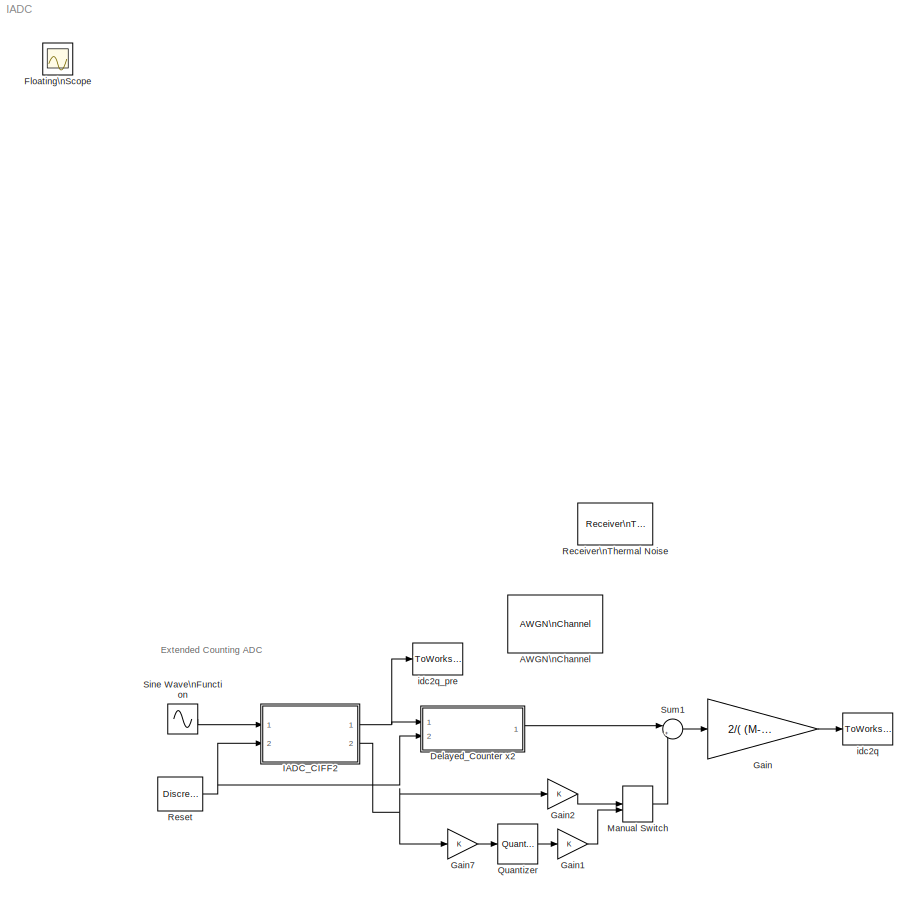
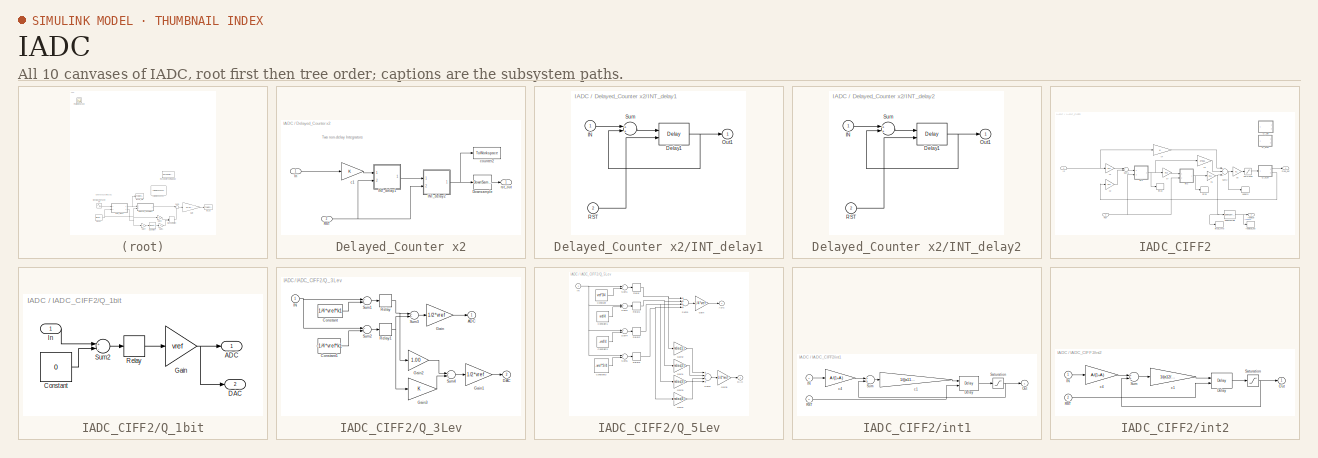
[diagram: thumbnail index - all 10 canvases of the model, root first then tree order]
MODEL IADC
KIND model
BLOCK [Reference] AWGN\nChannel  REF=commchan3/AWGN\nChannel
  Commented = on
  EbNodB = 10
  EsNodB = 10
  InputProcessing = Columns as channels (frame based)
  Ports = [1, 1]
  Ps = 1
  RTWMemSecDataConstants = Inherit from model
  RTWMemSecDataInternal = Inherit from model
  RTWMemSecDataParameters = Inherit from model
  RTWMemSecFuncExecute = Inherit from model
  RTWMemSecFuncInitTerm = Inherit from model
  SID = 13169
  SNRdB = 10
  SourceBlock = commchan3/AWGN\nChannel
  SourceProductBaseCode = CM
  SourceProductName = Communications Toolbox
  SourceType = AWGN Channel
  Tsym = 1
  UserData = DataTag0
  UserDataPersistent = on
  bitsPerSym = 1
  noiseMode = Signal to noise ratio  (Eb/No)
  seed = 67
  variance = 1
BLOCK [SubSystem] Delayed_Counter x2
  Ports = [2, 1]
  RequestExecContextInheritance = off
  SID = 13048
BLOCK [DownSample] Delayed_Counter x2/Downsample
  InputProcessing = Elements as channels (sample based)
  N = OSR
  RateOptions = Allow multirate processing
  SID = 13051
  phase = OSR-1
BLOCK [SubSystem] Delayed_Counter x2/INT_delay1
  Ports = [2, 1]
  RequestExecContextInheritance = off
  SID = 13052
BLOCK [Delay] Delayed_Counter x2/INT_delay1/Delay1
  DelayLength = 1
  ExternalReset = Rising
  InitialCondition = 0
  InputPortMap = u0,r5
  Ports = [2, 1]
  SID = 13055
  UserData = DataTag1
  UserDataPersistent = on
BLOCK [Inport] Delayed_Counter x2/INT_delay1/IN
  IconDisplay = Port number
  SID = 13053
BLOCK [Outport] Delayed_Counter x2/INT_delay1/Out1
  IconDisplay = Port number
  SID = 13057
  VectorParamsAs1DForOutWhenUnconnected = off
BLOCK [Inport] Delayed_Counter x2/INT_delay1/RST
  IconDisplay = Port number
  Port = 2
  SID = 13054
BLOCK [Sum] Delayed_Counter x2/INT_delay1/Sum
  Ports = [2, 1]
  SID = 13056
BLOCK [SubSystem] Delayed_Counter x2/INT_delay2
  Ports = [2, 1]
  RequestExecContextInheritance = off
  SID = 13058
BLOCK [Delay] Delayed_Counter x2/INT_delay2/Delay1
  DelayLength = 1
  ExternalReset = Rising
  InitialCondition = 0
  InputPortMap = u0,r5
  Ports = [2, 1]
  SID = 13061
  UserData = DataTag2
  UserDataPersistent = on
BLOCK [Inport] Delayed_Counter x2/INT_delay2/IN
  IconDisplay = Port number
  SID = 13059
BLOCK [Outport] Delayed_Counter x2/INT_delay2/Out1
  IconDisplay = Port number
  SID = 13063
  VectorParamsAs1DForOutWhenUnconnected = off
BLOCK [Inport] Delayed_Counter x2/INT_delay2/RST
  IconDisplay = Port number
  Port = 2
  SID = 13060
BLOCK [Sum] Delayed_Counter x2/INT_delay2/Sum
  Ports = [2, 1]
  SID = 13062
BLOCK [Inport] Delayed_Counter x2/In
  IconDisplay = Port number
  SID = 13049
BLOCK [Inport] Delayed_Counter x2/RST
  IconDisplay = Port number
  Port = 2
  SID = 13050
BLOCK [Gain] Delayed_Counter x2/c1
  SID = 13064
BLOCK [ToWorkspace] Delayed_Counter x2/counter2
  MaxDataPoints = inf
  Ports = [1]
  SID = 13065
  SampleTime = -1
  VariableName = counter2
BLOCK [Outport] Delayed_Counter x2/rst_out
  IconDisplay = Port number
  SID = 13066
  VectorParamsAs1DForOutWhenUnconnected = off
BLOCK [Scope] Floating\nScope
  Floating = off
  IOType = viewer
  NumInputPorts = 1
  Ports = []
  SID = 82
  ScopeSpecificationString = C++SS(StrPVP('Location','[376, 294, 963, 755]'),StrPVP('Open','off'),MxPVP('AxesTitles',54,'struct(''axes1'',''%<SignalLabel>'')'),StrPVP('DataFormat','StructureWithTime'),StrPVP('BlockParamSampleTime','0'),StrPVP('LimitDataPoints','on'),StrPVP('Decimation','1'),StrPVP('BlockParamSampleInput','off'))
BLOCK [Gain] Gain
  Gain = 2/( (M-1)*(M) )
  OutDataTypeStr = Inherit: Inherit via internal rule
  ParamDataTypeStr = Inherit: Inherit via internal rule
  SID = 13070
  SaturateOnIntegerOverflow = off
BLOCK [Gain] Gain1
  OutDataTypeStr = Inherit: Inherit via internal rule
  ParamDataTypeStr = Inherit: Inherit via internal rule
  SID = 13069
  SaturateOnIntegerOverflow = off
BLOCK [Gain] Gain2
  OutDataTypeStr = Inherit: Inherit via internal rule
  ParamDataTypeStr = Inherit: Inherit via internal rule
  SID = 13068
  SaturateOnIntegerOverflow = off
BLOCK [Gain] Gain7
  OutDataTypeStr = Inherit: Inherit via internal rule
  ParamDataTypeStr = Inherit: Inherit via internal rule
  SID = 13071
  SaturateOnIntegerOverflow = off
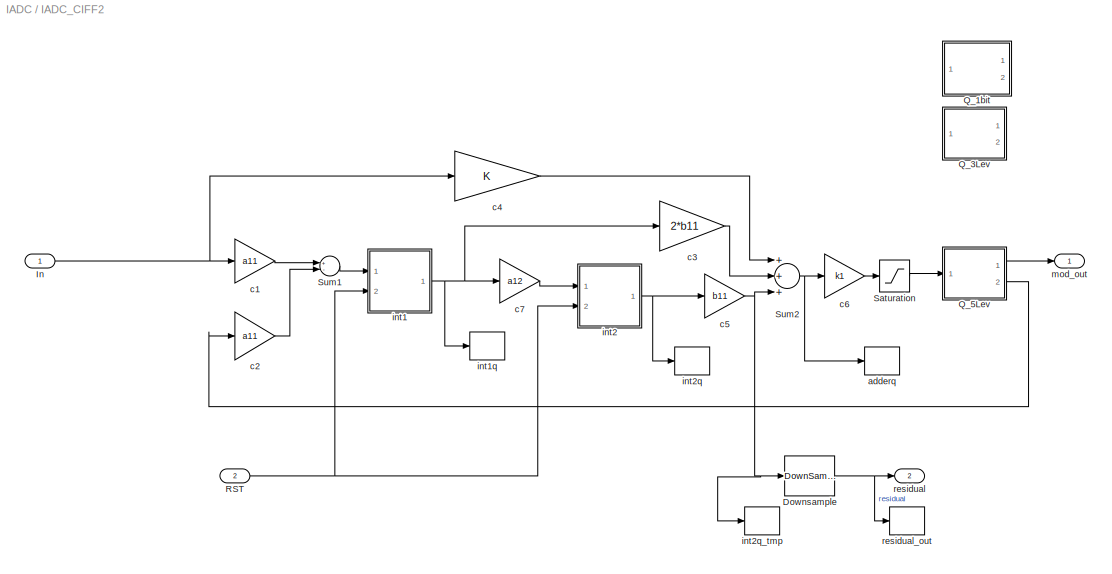
BLOCK [SubSystem] IADC_CIFF2
  Ports = [2, 2]
  RequestExecContextInheritance = off
  SID = 13072
BLOCK [DownSample] IADC_CIFF2/Downsample
  InputProcessing = Elements as channels (sample based)
  N = OSR
  RateOptions = Allow multirate processing
  SID = 13075
  phase = OSR-1
BLOCK [Inport] IADC_CIFF2/In
  IconDisplay = Port number
  SID = 13073
BLOCK [SubSystem] IADC_CIFF2/Q_1bit
  Commented = on
  Ports = [1, 2]
  RequestExecContextInheritance = off
  SID = 13076
BLOCK [Outport] IADC_CIFF2/Q_1bit/ADC
  IconDisplay = Port number
  SID = 13082
  VectorParamsAs1DForOutWhenUnconnected = off
BLOCK [Constant] IADC_CIFF2/Q_1bit/Constant
  SID = 13078
  Value = 0
BLOCK [Outport] IADC_CIFF2/Q_1bit/DAC
  IconDisplay = Port number
  Port = 2
  SID = 13083
  VectorParamsAs1DForOutWhenUnconnected = off
BLOCK [Gain] IADC_CIFF2/Q_1bit/Gain
  Gain = vref
  OutDataTypeStr = Inherit: Inherit via internal rule
  ParamDataTypeStr = Inherit: Inherit via internal rule
  SID = 13079
  SaturateOnIntegerOverflow = off
BLOCK [Inport] IADC_CIFF2/Q_1bit/In
  IconDisplay = Port number
  SID = 13077
BLOCK [Relay] IADC_CIFF2/Q_1bit/Relay
  OffOutputValue = -1
  SID = 13080
  SampleTime = tclk
BLOCK [Sum] IADC_CIFF2/Q_1bit/Sum2
  Inputs = +-
  Ports = [2, 1]
  SID = 13081
BLOCK [SubSystem] IADC_CIFF2/Q_3Lev
  Commented = on
  Ports = [1, 2]
  RequestExecContextInheritance = off
  SID = 13084
BLOCK [Outport] IADC_CIFF2/Q_3Lev/ADC
  IconDisplay = Port number
  SID = 13098
  VectorParamsAs1DForOutWhenUnconnected = off
BLOCK [Constant] IADC_CIFF2/Q_3Lev/Constant
  SID = 13086
  Value = 1/4*vref*k1
BLOCK [Constant] IADC_CIFF2/Q_3Lev/Constant1
  SID = 13087
  Value = -1/4*vref*k1
BLOCK [Outport] IADC_CIFF2/Q_3Lev/DAC
  IconDisplay = Port number
  Port = 2
  SID = 13099
  VectorParamsAs1DForOutWhenUnconnected = off
BLOCK [Gain] IADC_CIFF2/Q_3Lev/Gain
  Gain = 1/2*vref
  OutDataTypeStr = Inherit: Inherit via internal rule
  ParamDataTypeStr = Inherit: Inherit via internal rule
  SID = 13088
  SaturateOnIntegerOverflow = off
BLOCK [Gain] IADC_CIFF2/Q_3Lev/Gain1
  Gain = 1/2*vref
  OutDataTypeStr = Inherit: Inherit via internal rule
  ParamDataTypeStr = Inherit: Inherit via internal rule
  SID = 13089
  SaturateOnIntegerOverflow = off
BLOCK [Gain] IADC_CIFF2/Q_3Lev/Gain2
  Gain = 1.00
  OutDataTypeStr = Inherit: Inherit via internal rule
  ParamDataTypeStr = Inherit: Inherit via internal rule
  SID = 13090
  SaturateOnIntegerOverflow = off
BLOCK [Gain] IADC_CIFF2/Q_3Lev/Gain3
  OutDataTypeStr = Inherit: Inherit via internal rule
  ParamDataTypeStr = Inherit: Inherit via internal rule
  SID = 13091
  SaturateOnIntegerOverflow = off
BLOCK [Inport] IADC_CIFF2/Q_3Lev/IN
  IconDisplay = Port number
  SID = 13085
BLOCK [Relay] IADC_CIFF2/Q_3Lev/Relay
  OffOutputValue = -1
  SID = 13092
  SampleTime = tclk
BLOCK [Relay] IADC_CIFF2/Q_3Lev/Relay1
  OffOutputValue = -1
  SID = 13093
  SampleTime = tclk
BLOCK [Sum] IADC_CIFF2/Q_3Lev/Sum1
  Inputs = +-
  Ports = [2, 1]
  SID = 13094
BLOCK [Sum] IADC_CIFF2/Q_3Lev/Sum2
  Inputs = +-
  Ports = [2, 1]
  SID = 13095
BLOCK [Sum] IADC_CIFF2/Q_3Lev/Sum3
  Ports = [2, 1]
  SID = 13096
BLOCK [Sum] IADC_CIFF2/Q_3Lev/Sum4
  Ports = [2, 1]
  SID = 13097
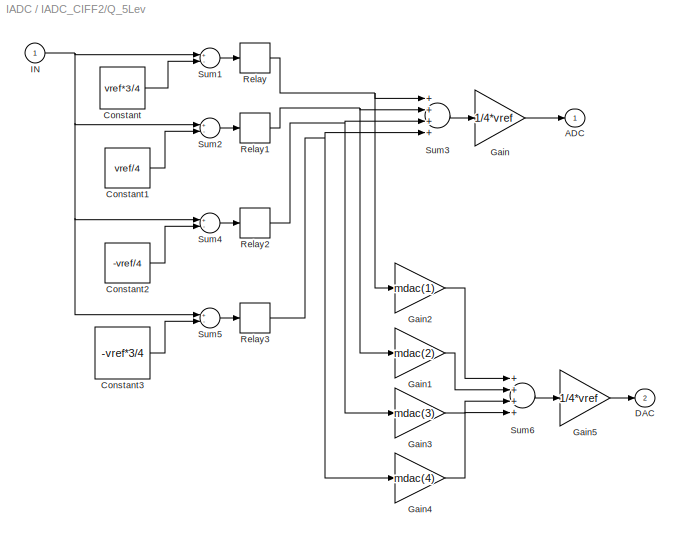
BLOCK [SubSystem] IADC_CIFF2/Q_5Lev
  Ports = [1, 2]
  RequestExecContextInheritance = off
  SID = 13100
BLOCK [Outport] IADC_CIFF2/Q_5Lev/ADC
  IconDisplay = Port number
  SID = 13122
  VectorParamsAs1DForOutWhenUnconnected = off
BLOCK [Constant] IADC_CIFF2/Q_5Lev/Constant
  SID = 13102
  Value = vref*3/4
BLOCK [Constant] IADC_CIFF2/Q_5Lev/Constant1
  SID = 13103
  Value = vref/4
BLOCK [Constant] IADC_CIFF2/Q_5Lev/Constant2
  SID = 13104
  Value = -vref/4
BLOCK [Constant] IADC_CIFF2/Q_5Lev/Constant3
  SID = 13105
  Value = -vref*3/4
BLOCK [Outport] IADC_CIFF2/Q_5Lev/DAC
  IconDisplay = Port number
  Port = 2
  SID = 13123
  VectorParamsAs1DForOutWhenUnconnected = off
BLOCK [Gain] IADC_CIFF2/Q_5Lev/Gain
  Gain = 1/4*vref
  OutDataTypeStr = Inherit: Inherit via internal rule
  ParamDataTypeStr = Inherit: Inherit via internal rule
  SID = 13106
  SaturateOnIntegerOverflow = off
BLOCK [Gain] IADC_CIFF2/Q_5Lev/Gain1
  Gain = mdac(2)
  OutDataTypeStr = Inherit: Inherit via internal rule
  ParamDataTypeStr = Inherit: Inherit via internal rule
  SID = 13107
  SaturateOnIntegerOverflow = off
BLOCK [Gain] IADC_CIFF2/Q_5Lev/Gain2
  Gain = mdac(1)
  OutDataTypeStr = Inherit: Inherit via internal rule
  ParamDataTypeStr = Inherit: Inherit via internal rule
  SID = 13108
  SaturateOnIntegerOverflow = off
BLOCK [Gain] IADC_CIFF2/Q_5Lev/Gain3
  Gain = mdac(3)
  OutDataTypeStr = Inherit: Inherit via internal rule
  ParamDataTypeStr = Inherit: Inherit via internal rule
  SID = 13109
  SaturateOnIntegerOverflow = off
BLOCK [Gain] IADC_CIFF2/Q_5Lev/Gain4
  Gain = mdac(4)
  OutDataTypeStr = Inherit: Inherit via internal rule
  ParamDataTypeStr = Inherit: Inherit via internal rule
  SID = 13110
  SaturateOnIntegerOverflow = off
BLOCK [Gain] IADC_CIFF2/Q_5Lev/Gain5
  Gain = 1/4*vref
  OutDataTypeStr = Inherit: Inherit via internal rule
  ParamDataTypeStr = Inherit: Inherit via internal rule
  SID = 13111
  SaturateOnIntegerOverflow = off
BLOCK [Inport] IADC_CIFF2/Q_5Lev/IN
  IconDisplay = Port number
  SID = 13101
BLOCK [Relay] IADC_CIFF2/Q_5Lev/Relay
  OffOutputValue = -1
  SID = 13112
  SampleTime = tclk
BLOCK [Relay] IADC_CIFF2/Q_5Lev/Relay1
  OffOutputValue = -1
  SID = 13113
  SampleTime = tclk
BLOCK [Relay] IADC_CIFF2/Q_5Lev/Relay2
  OffOutputValue = -1
  SID = 13114
  SampleTime = tclk
BLOCK [Relay] IADC_CIFF2/Q_5Lev/Relay3
  OffOutputValue = -1
  SID = 13115
  SampleTime = tclk
BLOCK [Sum] IADC_CIFF2/Q_5Lev/Sum1
  Inputs = +-
  Ports = [2, 1]
  SID = 13116
BLOCK [Sum] IADC_CIFF2/Q_5Lev/Sum2
  Inputs = +-
  Ports = [2, 1]
  SID = 13117
BLOCK [Sum] IADC_CIFF2/Q_5Lev/Sum3
  Inputs = ++++
  Ports = [4, 1]
  SID = 13118
BLOCK [Sum] IADC_CIFF2/Q_5Lev/Sum4
  Inputs = +-
  Ports = [2, 1]
  SID = 13119
BLOCK [Sum] IADC_CIFF2/Q_5Lev/Sum5
  Inputs = +-
  Ports = [2, 1]
  SID = 13120
BLOCK [Sum] IADC_CIFF2/Q_5Lev/Sum6
  Inputs = ++++
  Ports = [4, 1]
  SID = 13121
BLOCK [Inport] IADC_CIFF2/RST
  IconDisplay = Port number
  Port = 2
  SID = 13074
BLOCK [Saturate] IADC_CIFF2/Saturation
  InputPortMap = u0
  LowerLimit = -1*adder_max
  Ports = [1, 1]
  SID = 13124
  UpperLimit = adder_max*1
BLOCK [Sum] IADC_CIFF2/Sum1
  Inputs = +-
  Ports = [2, 1]
  SID = 13125
BLOCK [Sum] IADC_CIFF2/Sum2
  Inputs = +++
  Ports = [3, 1]
  SID = 13126
BLOCK [ToWorkspace] IADC_CIFF2/adderq
  MaxDataPoints = inf
  Ports = [1]
  SID = 13127
  SampleTime = -1
  VariableName = adderq
BLOCK [Gain] IADC_CIFF2/c1
  Gain = a11
  SID = 13128
BLOCK [Gain] IADC_CIFF2/c2
  Gain = a11
  SID = 13129
BLOCK [Gain] IADC_CIFF2/c3
  Gain = 2*b11
  SID = 13130
BLOCK [Gain] IADC_CIFF2/c4
  SID = 13131
BLOCK [Gain] IADC_CIFF2/c5
  Gain = b11
  SID = 13132
BLOCK [Gain] IADC_CIFF2/c6
  Gain = k1
  SID = 13133
BLOCK [Gain] IADC_CIFF2/c7
  Gain = a12
  SID = 13134
BLOCK [SubSystem] IADC_CIFF2/int1
  Ports = [2, 1]
  RequestExecContextInheritance = off
  SID = 13135
BLOCK [Delay] IADC_CIFF2/int1/Delay
  DelayLength = 1
  ExternalReset = Rising
  InitialCondition = 0
  InputPortMap = u0,r5
  Ports = [2, 1]
  SID = 13138
  UserData = DataTag3
  UserDataPersistent = on
BLOCK [Inport] IADC_CIFF2/int1/IN
  IconDisplay = Port number
  SID = 13136
BLOCK [Outport] IADC_CIFF2/int1/Out
  IconDisplay = Port number
  SID = 13143
  VectorParamsAs1DForOutWhenUnconnected = off
BLOCK [Inport] IADC_CIFF2/int1/RST
  IconDisplay = Port number
  Port = 2
  SID = 13137
BLOCK [Saturate] IADC_CIFF2/int1/Saturation
  InputPortMap = u0
  LowerLimit = -1*Amax
  Ports = [1, 1]
  SID = 13139
  UpperLimit = Amax
BLOCK [Sum] IADC_CIFF2/int1/Sum
  Ports = [2, 1]
  SID = 13140
BLOCK [Gain] IADC_CIFF2/int1/c1
  Gain = 1/((a11+a11)/(1+A) +1)
  SID = 13141
BLOCK [Gain] IADC_CIFF2/int1/c4
  Gain = A/(1+A)
  SID = 13142
BLOCK [ToWorkspace] IADC_CIFF2/int1q
  MaxDataPoints = inf
  Ports = [1]
  SID = 13144
  SampleTime = -1
  VariableName = int1q
BLOCK [SubSystem] IADC_CIFF2/int2
  Ports = [2, 1]
  RequestExecContextInheritance = off
  SID = 13145
BLOCK [Delay] IADC_CIFF2/int2/Delay
  DelayLength = 1
  ExternalReset = Rising
  InitialCondition = 0
  InputPortMap = u0,r5
  Ports = [2, 1]
  SID = 13148
  UserData = DataTag4
  UserDataPersistent = on
BLOCK [Inport] IADC_CIFF2/int2/IN
  IconDisplay = Port number
  SID = 13146
BLOCK [Outport] IADC_CIFF2/int2/Out
  IconDisplay = Port number
  SID = 13153
  VectorParamsAs1DForOutWhenUnconnected = off
BLOCK [Inport] IADC_CIFF2/int2/RST
  IconDisplay = Port number
  Port = 2
  SID = 13147
BLOCK [Saturate] IADC_CIFF2/int2/Saturation
  InputPortMap = u0
  LowerLimit = -1*Amax
  Ports = [1, 1]
  SID = 13149
  UpperLimit = Amax
BLOCK [Sum] IADC_CIFF2/int2/Sum
  Ports = [2, 1]
  SID = 13150
BLOCK [Gain] IADC_CIFF2/int2/c1
  Gain = 1/(a12/(1+A) +1)
  SID = 13151
BLOCK [Gain] IADC_CIFF2/int2/c4
  Gain = A/(1+A)
  SID = 13152
BLOCK [ToWorkspace] IADC_CIFF2/int2q
  MaxDataPoints = inf
  Ports = [1]
  SID = 13154
  SampleTime = -1
  VariableName = int2q
BLOCK [ToWorkspace] IADC_CIFF2/int2q_tmp
  MaxDataPoints = inf
  Ports = [1]
  SID = 13155
  SampleTime = -1
  VariableName = int2q_tmp
BLOCK [Outport] IADC_CIFF2/mod_out
  IconDisplay = Port number
  SID = 13157
  VectorParamsAs1DForOutWhenUnconnected = off
BLOCK [Outport] IADC_CIFF2/residual
  IconDisplay = Port number
  Port = 2
  SID = 13158
  VectorParamsAs1DForOutWhenUnconnected = off
BLOCK [ToWorkspace] IADC_CIFF2/residual_out
  MaxDataPoints = inf
  Ports = [1]
  SID = 13156
  SampleTime = -1
  VariableName = residual
BLOCK [ManualSwitch] Manual Switch
  CurrentSetting = 0
  SID = 13159
BLOCK [Quantizer] Quantizer
  LinearizeAsGain = off
  QuantizationInterval = vfs/1024
  SID = 13160
BLOCK [Reference] Receiver\nThermal Noise  REF=commrflib2/Receiver\nThermal Noise
  Commented = on
  Ports = [1, 1]
  RTWMemSecDataConstants = Inherit from model
  RTWMemSecDataInternal = Inherit from model
  RTWMemSecDataParameters = Inherit from model
  RTWMemSecFuncExecute = Inherit from model
  RTWMemSecFuncInitTerm = Inherit from model
  SID = 13168
  SourceBlock = commrflib2/Receiver\nThermal Noise
  SourceProductBaseCode = CM
  SourceProductName = Communications Toolbox
  SourceType = Receiver Thermal Noise
  add290KAntennaNoise = off
  method = Noise temperature
  nfactor = 2
  nfigure = 3.0103
  ntemp = 290
  seed = 67987
BLOCK [DiscretePulseGenerator] Reset
  Period = OSR
  Ports = [0, 1]
  SID = 13161
  SampleTime = tclk
BLOCK [Sin] Sine Wave\nFunction
  Amplitude = vin_amp
  Frequency = fsig*2*pi
  Ports = [0, 1]
  SID = 13162
  SampleTime = tclk
BLOCK [Sum] Sum1
  IconShape = round
  InputSameDT = off
  Inputs = |++
  OutDataTypeStr = Inherit: Inherit via internal rule
  Ports = [2, 1]
  SID = 13163
  SaturateOnIntegerOverflow = off
BLOCK [ToWorkspace] idc2q
  MaxDataPoints = inf
  Ports = [1]
  SID = 13164
  SampleTime = -1
  VariableName = idc2q
BLOCK [ToWorkspace] idc2q_pre
  MaxDataPoints = inf
  Ports = [1]
  SID = 13165
  SampleTime = -1
  VariableName = idc2q_pre
ANNOTATION (root): Extended Counting ADC
ANNOTATION Delayed_Counter x2: Two non-delay Integrators
LINE Delayed_Counter x2/Downsample:1 -> Delayed_Counter x2/rst_out:1
NET Delayed_Counter x2/INT_delay1/Delay1:1 -> Delayed_Counter x2/INT_delay1/Out1:1, Delayed_Counter x2/INT_delay1/Sum:2
LINE Delayed_Counter x2/INT_delay1/IN:1 -> Delayed_Counter x2/INT_delay1/Sum:1
LINE Delayed_Counter x2/INT_delay1/RST:1 -> Delayed_Counter x2/INT_delay1/Delay1:2
LINE Delayed_Counter x2/INT_delay1/Sum:1 -> Delayed_Counter x2/INT_delay1/Delay1:1
LINE Delayed_Counter x2/INT_delay1:1 -> Delayed_Counter x2/INT_delay2:1
NET Delayed_Counter x2/INT_delay2/Delay1:1 -> Delayed_Counter x2/INT_delay2/Out1:1, Delayed_Counter x2/INT_delay2/Sum:2
LINE Delayed_Counter x2/INT_delay2/IN:1 -> Delayed_Counter x2/INT_delay2/Sum:1
LINE Delayed_Counter x2/INT_delay2/RST:1 -> Delayed_Counter x2/INT_delay2/Delay1:2
LINE Delayed_Counter x2/INT_delay2/Sum:1 -> Delayed_Counter x2/INT_delay2/Delay1:1
NET Delayed_Counter x2/INT_delay2:1 -> Delayed_Counter x2/Downsample:1, Delayed_Counter x2/counter2:1
LINE Delayed_Counter x2/In:1 -> Delayed_Counter x2/c1:1
NET Delayed_Counter x2/RST:1 -> Delayed_Counter x2/INT_delay1:2, Delayed_Counter x2/INT_delay2:2
LINE Delayed_Counter x2/c1:1 -> Delayed_Counter x2/INT_delay1:1
LINE Delayed_Counter x2:1 -> Sum1:1
LINE Gain1:1 -> Manual Switch:2
LINE Gain2:1 -> Manual Switch:1
LINE Gain7:1 -> Quantizer:1
LINE Gain:1 -> idc2q:1
NET IADC_CIFF2/Downsample:1 -> IADC_CIFF2/residual:1, IADC_CIFF2/residual_out:1
NET IADC_CIFF2/In:1 -> IADC_CIFF2/c1:1, IADC_CIFF2/c4:1
LINE IADC_CIFF2/Q_1bit/Constant:1 -> IADC_CIFF2/Q_1bit/Sum2:2
NET IADC_CIFF2/Q_1bit/Gain:1 -> IADC_CIFF2/Q_1bit/ADC:1, IADC_CIFF2/Q_1bit/DAC:1
LINE IADC_CIFF2/Q_1bit/In:1 -> IADC_CIFF2/Q_1bit/Sum2:1
LINE IADC_CIFF2/Q_1bit/Relay:1 -> IADC_CIFF2/Q_1bit/Gain:1
LINE IADC_CIFF2/Q_1bit/Sum2:1 -> IADC_CIFF2/Q_1bit/Relay:1
LINE IADC_CIFF2/Q_3Lev/Constant1:1 -> IADC_CIFF2/Q_3Lev/Sum2:2
LINE IADC_CIFF2/Q_3Lev/Constant:1 -> IADC_CIFF2/Q_3Lev/Sum1:2
LINE IADC_CIFF2/Q_3Lev/Gain1:1 -> IADC_CIFF2/Q_3Lev/DAC:1
LINE IADC_CIFF2/Q_3Lev/Gain2:1 -> IADC_CIFF2/Q_3Lev/Sum4:1
LINE IADC_CIFF2/Q_3Lev/Gain3:1 -> IADC_CIFF2/Q_3Lev/Sum4:2
LINE IADC_CIFF2/Q_3Lev/Gain:1 -> IADC_CIFF2/Q_3Lev/ADC:1
NET IADC_CIFF2/Q_3Lev/IN:1 -> IADC_CIFF2/Q_3Lev/Sum1:1, IADC_CIFF2/Q_3Lev/Sum2:1
NET IADC_CIFF2/Q_3Lev/Relay1:1 -> IADC_CIFF2/Q_3Lev/Gain3:1, IADC_CIFF2/Q_3Lev/Sum3:2
NET IADC_CIFF2/Q_3Lev/Relay:1 -> IADC_CIFF2/Q_3Lev/Gain2:1, IADC_CIFF2/Q_3Lev/Sum3:1
LINE IADC_CIFF2/Q_3Lev/Sum1:1 -> IADC_CIFF2/Q_3Lev/Relay:1
LINE IADC_CIFF2/Q_3Lev/Sum2:1 -> IADC_CIFF2/Q_3Lev/Relay1:1
LINE IADC_CIFF2/Q_3Lev/Sum3:1 -> IADC_CIFF2/Q_3Lev/Gain:1
LINE IADC_CIFF2/Q_3Lev/Sum4:1 -> IADC_CIFF2/Q_3Lev/Gain1:1
LINE IADC_CIFF2/Q_5Lev/Constant1:1 -> IADC_CIFF2/Q_5Lev/Sum2:2
LINE IADC_CIFF2/Q_5Lev/Constant2:1 -> IADC_CIFF2/Q_5Lev/Sum4:2
LINE IADC_CIFF2/Q_5Lev/Constant3:1 -> IADC_CIFF2/Q_5Lev/Sum5:2
LINE IADC_CIFF2/Q_5Lev/Constant:1 -> IADC_CIFF2/Q_5Lev/Sum1:2
LINE IADC_CIFF2/Q_5Lev/Gain1:1 -> IADC_CIFF2/Q_5Lev/Sum6:2
LINE IADC_CIFF2/Q_5Lev/Gain2:1 -> IADC_CIFF2/Q_5Lev/Sum6:1
LINE IADC_CIFF2/Q_5Lev/Gain3:1 -> IADC_CIFF2/Q_5Lev/Sum6:3
LINE IADC_CIFF2/Q_5Lev/Gain4:1 -> IADC_CIFF2/Q_5Lev/Sum6:4
LINE IADC_CIFF2/Q_5Lev/Gain5:1 -> IADC_CIFF2/Q_5Lev/DAC:1
LINE IADC_CIFF2/Q_5Lev/Gain:1 -> IADC_CIFF2/Q_5Lev/ADC:1
NET IADC_CIFF2/Q_5Lev/IN:1 -> IADC_CIFF2/Q_5Lev/Sum1:1, IADC_CIFF2/Q_5Lev/Sum2:1, IADC_CIFF2/Q_5Lev/Sum4:1, IADC_CIFF2/Q_5Lev/Sum5:1
NET IADC_CIFF2/Q_5Lev/Relay1:1 -> IADC_CIFF2/Q_5Lev/Gain1:1, IADC_CIFF2/Q_5Lev/Sum3:2
NET IADC_CIFF2/Q_5Lev/Relay2:1 -> IADC_CIFF2/Q_5Lev/Gain3:1, IADC_CIFF2/Q_5Lev/Sum3:3
NET IADC_CIFF2/Q_5Lev/Relay3:1 -> IADC_CIFF2/Q_5Lev/Gain4:1, IADC_CIFF2/Q_5Lev/Sum3:4
NET IADC_CIFF2/Q_5Lev/Relay:1 -> IADC_CIFF2/Q_5Lev/Gain2:1, IADC_CIFF2/Q_5Lev/Sum3:1
LINE IADC_CIFF2/Q_5Lev/Sum1:1 -> IADC_CIFF2/Q_5Lev/Relay:1
LINE IADC_CIFF2/Q_5Lev/Sum2:1 -> IADC_CIFF2/Q_5Lev/Relay1:1
LINE IADC_CIFF2/Q_5Lev/Sum3:1 -> IADC_CIFF2/Q_5Lev/Gain:1
LINE IADC_CIFF2/Q_5Lev/Sum4:1 -> IADC_CIFF2/Q_5Lev/Relay2:1
LINE IADC_CIFF2/Q_5Lev/Sum5:1 -> IADC_CIFF2/Q_5Lev/Relay3:1
LINE IADC_CIFF2/Q_5Lev/Sum6:1 -> IADC_CIFF2/Q_5Lev/Gain5:1
LINE IADC_CIFF2/Q_5Lev:1 -> IADC_CIFF2/mod_out:1
LINE IADC_CIFF2/Q_5Lev:2 -> IADC_CIFF2/c2:1
NET IADC_CIFF2/RST:1 -> IADC_CIFF2/int1:2, IADC_CIFF2/int2:2
LINE IADC_CIFF2/Saturation:1 -> IADC_CIFF2/Q_5Lev:1
LINE IADC_CIFF2/Sum1:1 -> IADC_CIFF2/int1:1
NET IADC_CIFF2/Sum2:1 -> IADC_CIFF2/adderq:1, IADC_CIFF2/c6:1
LINE IADC_CIFF2/c1:1 -> IADC_CIFF2/Sum1:1
LINE IADC_CIFF2/c2:1 -> IADC_CIFF2/Sum1:2
LINE IADC_CIFF2/c3:1 -> IADC_CIFF2/Sum2:2
LINE IADC_CIFF2/c4:1 -> IADC_CIFF2/Sum2:1
NET IADC_CIFF2/c5:1 -> IADC_CIFF2/Downsample:1, IADC_CIFF2/Sum2:3, IADC_CIFF2/int2q_tmp:1
LINE IADC_CIFF2/c6:1 -> IADC_CIFF2/Saturation:1
LINE IADC_CIFF2/c7:1 -> IADC_CIFF2/int2:1
LINE IADC_CIFF2/int1/Delay:1 -> IADC_CIFF2/int1/Saturation:1
LINE IADC_CIFF2/int1/IN:1 -> IADC_CIFF2/int1/c4:1
LINE IADC_CIFF2/int1/RST:1 -> IADC_CIFF2/int1/Delay:2
NET IADC_CIFF2/int1/Saturation:1 -> IADC_CIFF2/int1/Out:1, IADC_CIFF2/int1/Sum:2
LINE IADC_CIFF2/int1/Sum:1 -> IADC_CIFF2/int1/c1:1
LINE IADC_CIFF2/int1/c1:1 -> IADC_CIFF2/int1/Delay:1
LINE IADC_CIFF2/int1/c4:1 -> IADC_CIFF2/int1/Sum:1
NET IADC_CIFF2/int1:1 -> IADC_CIFF2/c3:1, IADC_CIFF2/c7:1, IADC_CIFF2/int1q:1
LINE IADC_CIFF2/int2/Delay:1 -> IADC_CIFF2/int2/Saturation:1
LINE IADC_CIFF2/int2/IN:1 -> IADC_CIFF2/int2/c4:1
LINE IADC_CIFF2/int2/RST:1 -> IADC_CIFF2/int2/Delay:2
NET IADC_CIFF2/int2/Saturation:1 -> IADC_CIFF2/int2/Out:1, IADC_CIFF2/int2/Sum:2
LINE IADC_CIFF2/int2/Sum:1 -> IADC_CIFF2/int2/c1:1
LINE IADC_CIFF2/int2/c1:1 -> IADC_CIFF2/int2/Delay:1
LINE IADC_CIFF2/int2/c4:1 -> IADC_CIFF2/int2/Sum:1
NET IADC_CIFF2/int2:1 -> IADC_CIFF2/c5:1, IADC_CIFF2/int2q:1
NET IADC_CIFF2:1 -> Delayed_Counter x2:1, idc2q_pre:1
NET IADC_CIFF2:2 -> Gain2:1, Gain7:1
LINE Manual Switch:1 -> Sum1:2
LINE Quantizer:1 -> Gain1:1
NET Reset:1 -> Delayed_Counter x2:2, IADC_CIFF2:2
LINE Sine Wave\nFunction:1 -> IADC_CIFF2:1
LINE Sum1:1 -> Gain:1
note: NET lines group one-source signal fan-out (src -> all destinations, sorted); 1:1 wires keep LINE
